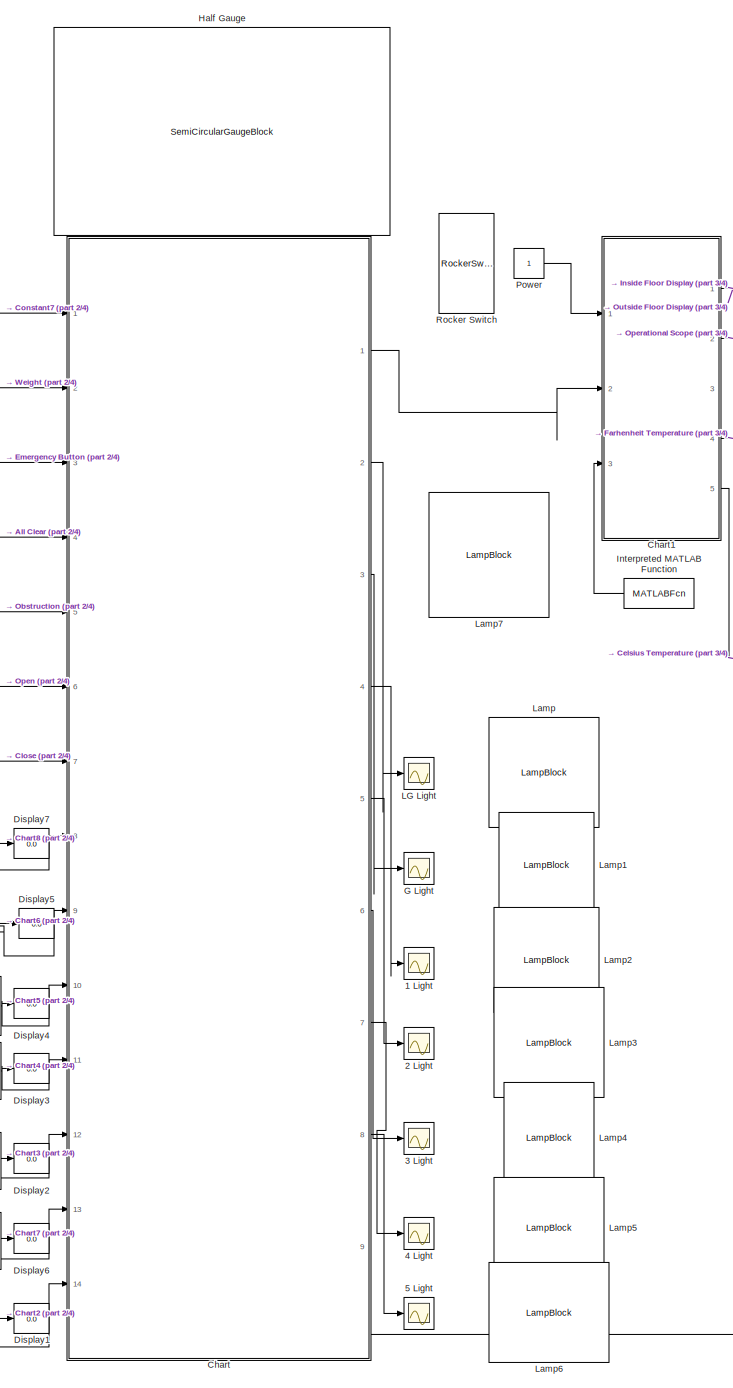
[diagram: root canvas - part 1/4, center side, full height]
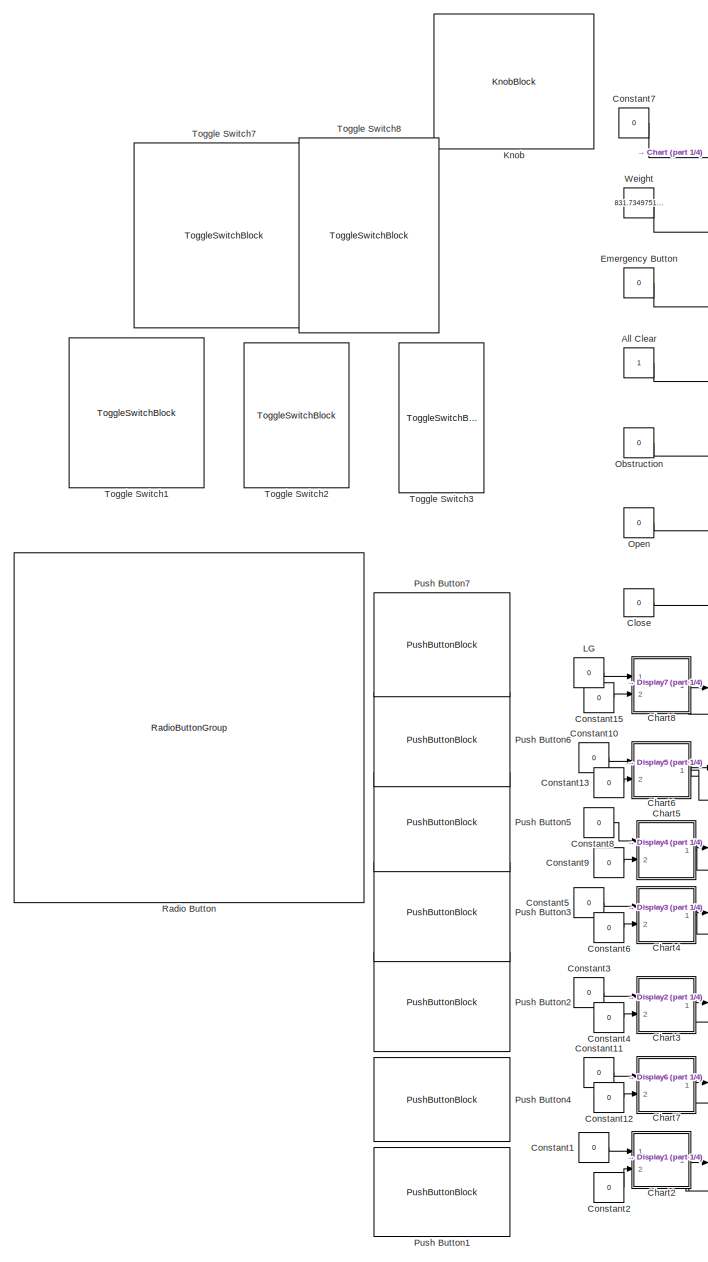
[diagram: root canvas - part 2/4, left side, full height]
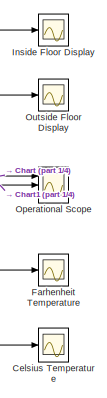
[diagram: root canvas - part 3/4, middle right region]
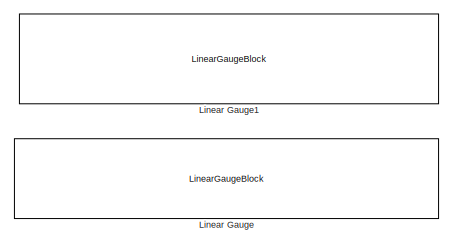
[diagram: root canvas - part 4/4, middle right region]
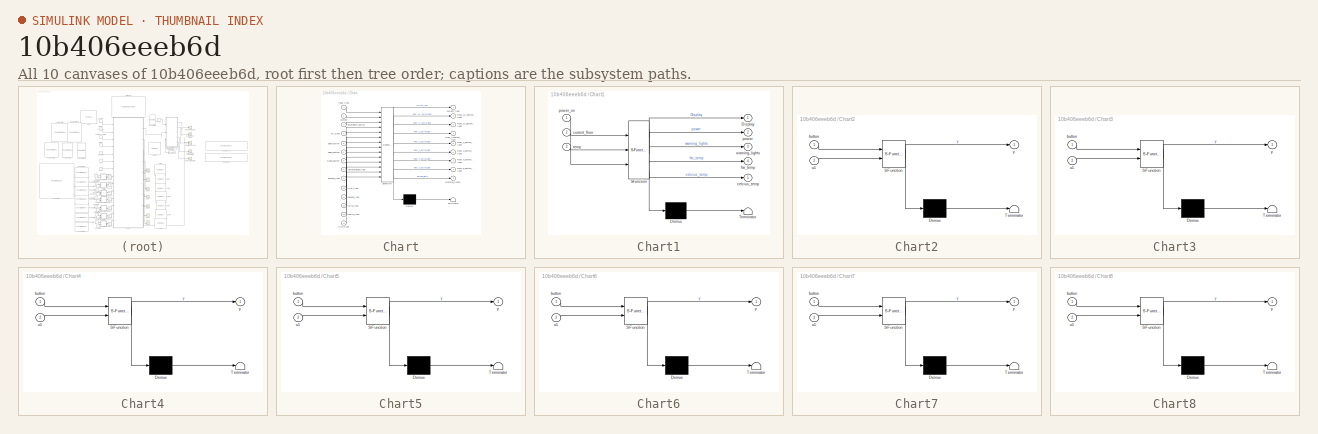
[diagram: thumbnail index - all 10 canvases of the model, root first then tree order]
MODEL slx_10b406eeeb6d
KIND model
CONFIG AbsTol = auto
CONFIG EnableMultiTasking = off
CONFIG FixedStep = auto
CONFIG MaxStep = auto
CONFIG MinStep = auto
CONFIG RelTol = 1e-3
CONFIG SampleTimeConstraint = Unconstrained
CONFIG Solver = VariableStepAuto
CONFIG SolverName = VariableStepAuto
CONFIG StartTime = 0.0
CONFIG StopTime = inf
BLOCK [Scope] 1 Light
  Floating = off
  NumInputPorts = 1
  Ports = [1]
  ScopeSpecificationString = Simulink.scopes.TimeScopeBlockCfg('CurrentConfiguration', extmgr.ConfigurationSet(extmgr.Configuration('Core','General UI',true),extmgr.Configuration('Core','Source UI',true),extmgr.Configuration('Sources','WiredSimulink',true,'DataLoggingVariableName','ScopeData3'),extmgr.Configuration('Visuals','Time Domain',true,'SerializedDisplays',{struct('MinYLimReal','-1.00000','MaxYLimReal','1.00000','YLab...<+1385ch>
BLOCK [Scope] 2 Light
  Floating = off
  NumInputPorts = 1
  Ports = [1]
  ScopeSpecificationString = Simulink.scopes.TimeScopeBlockCfg('CurrentConfiguration', extmgr.ConfigurationSet(extmgr.Configuration('Core','General UI',true),extmgr.Configuration('Core','Source UI',true),extmgr.Configuration('Sources','WiredSimulink',true,'DataLoggingVariableName','ScopeData4'),extmgr.Configuration('Visuals','Time Domain',true,'SerializedDisplays',{struct('MinYLimReal','-1.00000','MaxYLimReal','1.00000','YLab...<+1385ch>
BLOCK [Scope] 3 Light
  Floating = off
  NumInputPorts = 1
  Ports = [1]
  ScopeSpecificationString = Simulink.scopes.TimeScopeBlockCfg('CurrentConfiguration', extmgr.ConfigurationSet(extmgr.Configuration('Core','General UI',true),extmgr.Configuration('Core','Source UI',true),extmgr.Configuration('Sources','WiredSimulink',true,'DataLoggingVariableName','ScopeData5'),extmgr.Configuration('Visuals','Time Domain',true,'SerializedDisplays',{struct('MinYLimReal','-1.00000','MaxYLimReal','1.00000','YLab...<+1385ch>
BLOCK [Scope] 4 Light
  Floating = off
  NumInputPorts = 1
  Ports = [1]
  ScopeSpecificationString = Simulink.scopes.TimeScopeBlockCfg('CurrentConfiguration', extmgr.ConfigurationSet(extmgr.Configuration('Core','General UI',true),extmgr.Configuration('Core','Source UI',true),extmgr.Configuration('Sources','WiredSimulink',true,'DataLoggingVariableName','ScopeData6'),extmgr.Configuration('Visuals','Time Domain',true),extmgr.Configuration('Tools','Plot Navigation',true),extmgr.Configuration('Tools',...<+40ch>
BLOCK [Scope] 5 Light
  Floating = off
  NumInputPorts = 1
  Ports = [1]
  ScopeSpecificationString = Simulink.scopes.TimeScopeBlockCfg('CurrentConfiguration', extmgr.ConfigurationSet(extmgr.Configuration('Core','General UI',true),extmgr.Configuration('Core','Source UI',true),extmgr.Configuration('Sources','WiredSimulink',true,'DataLoggingVariableName','ScopeData7'),extmgr.Configuration('Visuals','Time Domain',true),extmgr.Configuration('Tools','Plot Navigation',true),extmgr.Configuration('Tools',...<+40ch>
BLOCK [Constant] All Clear
BLOCK [Scope] Celsius Temperature
  Floating = off
  NumInputPorts = 1
  Ports = [1]
  ScopeSpecificationString = Simulink.scopes.TimeScopeBlockCfg('CurrentConfiguration', extmgr.ConfigurationSet(extmgr.Configuration('Core','General UI',true),extmgr.Configuration('Core','Source UI',true),extmgr.Configuration('Sources','WiredSimulink',true,'DataLoggingVariableName','ScopeData4'),extmgr.Configuration('Visuals','Time Domain',true,'SerializedDisplays',{struct('MinYLimReal','-1.00000','MaxYLimReal','1.00000','YLab...<+1432ch>
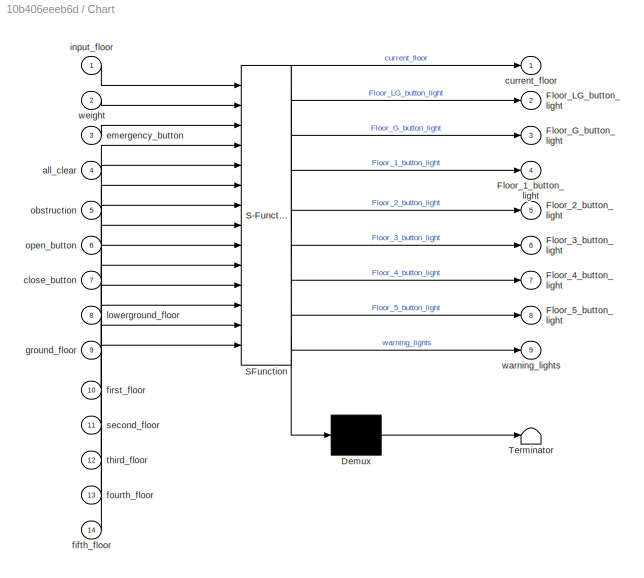
BLOCK [SubSystem] Chart
  ErrorFcn = Stateflow.Translate.translate
  PermitHierarchicalResolution = ExplicitOnly
  Ports = [14, 9]
  RequestExecContextInheritance = off
  SFBlockType = Chart
  TreatAsAtomicUnit = on
BLOCK [Demux] Chart/ Demux 
  Outputs = 1
  Ports = [1, 1]
BLOCK [S-Function] Chart/ SFunction 
  EnableBusSupport = on
  FunctionName = sf_sfun
  PortCounts = [14 10]
  Ports = [14, 10]
  SFcnIsStateOwnerBlock = off
  SFunctionDeploymentMode = off
  Tag = Stateflow S-Function 1
BLOCK [Terminator] Chart/ Terminator 
BLOCK [Outport] Chart/Floor_1_button_light
  IconDisplay = Port number
  Port = 4
BLOCK [Outport] Chart/Floor_2_button_light
  IconDisplay = Port number
  Port = 5
BLOCK [Outport] Chart/Floor_3_button_light
  IconDisplay = Port number
  Port = 6
BLOCK [Outport] Chart/Floor_4_button_light
  IconDisplay = Port number
  Port = 7
BLOCK [Outport] Chart/Floor_5_button_light
  IconDisplay = Port number
  Port = 8
BLOCK [Outport] Chart/Floor_G_button_light
  IconDisplay = Port number
  Port = 3
BLOCK [Outport] Chart/Floor_LG_button_light
  IconDisplay = Port number
  Port = 2
BLOCK [Inport] Chart/all_clear
  IconDisplay = Port number
  Port = 4
BLOCK [Inport] Chart/close_button
  IconDisplay = Port number
  Port = 7
BLOCK [Outport] Chart/current_floor
  IconDisplay = Port number
  VectorParamsAs1DForOutWhenUnconnected = off
BLOCK [Inport] Chart/emergency_button
  IconDisplay = Port number
  Port = 3
BLOCK [Inport] Chart/fifth_floor
  IconDisplay = Port number
  Port = 14
BLOCK [Inport] Chart/first_floor
  IconDisplay = Port number
  Port = 10
BLOCK [Inport] Chart/fourth_floor
  IconDisplay = Port number
  Port = 13
BLOCK [Inport] Chart/ground_floor
  IconDisplay = Port number
  Port = 9
BLOCK [Inport] Chart/input_floor
  IconDisplay = Port number
BLOCK [Inport] Chart/lowerground_floor
  IconDisplay = Port number
  Port = 8
BLOCK [Inport] Chart/obstruction
  IconDisplay = Port number
  Port = 5
BLOCK [Inport] Chart/open_button
  IconDisplay = Port number
  Port = 6
BLOCK [Inport] Chart/second_floor
  IconDisplay = Port number
  Port = 11
BLOCK [Inport] Chart/third_floor
  IconDisplay = Port number
  Port = 12
BLOCK [Outport] Chart/warning_lights
  IconDisplay = Port number
  Port = 9
BLOCK [Inport] Chart/weight
  IconDisplay = Port number
  Port = 2
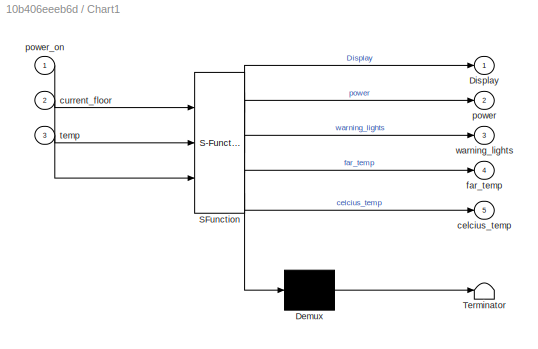
BLOCK [SubSystem] Chart1
  BlockKeywords = __PRM__SERIALIZED__DATA__:Stateflow Chart,Stateflow Diagram
  ErrorFcn = Stateflow.Translate.translate
  PermitHierarchicalResolution = ExplicitOnly
  Ports = [3, 5]
  RequestExecContextInheritance = off
  SFBlockType = Chart
  TreatAsAtomicUnit = on
BLOCK [Demux] Chart1/ Demux 
  Outputs = 1
  Ports = [1, 1]
BLOCK [S-Function] Chart1/ SFunction 
  EnableBusSupport = on
  FunctionName = sf_sfun
  PortCounts = [3 6]
  Ports = [3, 6]
  SFcnIsStateOwnerBlock = off
  SFunctionDeploymentMode = off
  Tag = Stateflow S-Function 3
BLOCK [Terminator] Chart1/ Terminator 
BLOCK [Outport] Chart1/Display
  IconDisplay = Port number
BLOCK [Outport] Chart1/celcius_temp
  IconDisplay = Port number
  Port = 5
BLOCK [Inport] Chart1/current_floor
  IconDisplay = Port number
  Port = 2
BLOCK [Outport] Chart1/far_temp
  IconDisplay = Port number
  Port = 4
BLOCK [Outport] Chart1/power
  IconDisplay = Port number
  Port = 2
BLOCK [Inport] Chart1/power_on
  IconDisplay = Port number
BLOCK [Inport] Chart1/temp
  IconDisplay = Port number
  Port = 3
BLOCK [Outport] Chart1/warning_lights
  IconDisplay = Port number
  Port = 3
BLOCK [SubSystem] Chart2
  BlockKeywords = __PRM__SERIALIZED__DATA__:Stateflow Chart,Stateflow Diagram
  ErrorFcn = Stateflow.Translate.translate
  PermitHierarchicalResolution = ExplicitOnly
  Ports = [2, 1]
  RequestExecContextInheritance = off
  SFBlockType = Chart
  TreatAsAtomicUnit = on
BLOCK [Demux] Chart2/ Demux 
  Outputs = 1
  Ports = [1, 1]
BLOCK [S-Function] Chart2/ SFunction 
  EnableBusSupport = on
  FunctionName = sf_sfun
  PortCounts = [2 2]
  Ports = [2, 2]
  SFcnIsStateOwnerBlock = off
  SFunctionDeploymentMode = off
  Tag = Stateflow S-Function 2
BLOCK [Terminator] Chart2/ Terminator 
BLOCK [Inport] Chart2/button
  IconDisplay = Port number
BLOCK [Inport] Chart2/u1
  IconDisplay = Port number
  Port = 2
BLOCK [Outport] Chart2/y
  IconDisplay = Port number
BLOCK [SubSystem] Chart3
  BlockKeywords = __PRM__SERIALIZED__DATA__:Stateflow Chart,Stateflow Diagram
  ErrorFcn = Stateflow.Translate.translate
  PermitHierarchicalResolution = ExplicitOnly
  Ports = [2, 1]
  RequestExecContextInheritance = off
  SFBlockType = Chart
  TreatAsAtomicUnit = on
BLOCK [Demux] Chart3/ Demux 
  Outputs = 1
  Ports = [1, 1]
BLOCK [S-Function] Chart3/ SFunction 
  EnableBusSupport = on
  FunctionName = sf_sfun
  PortCounts = [2 2]
  Ports = [2, 2]
  SFcnIsStateOwnerBlock = off
  SFunctionDeploymentMode = off
  Tag = Stateflow S-Function 4
BLOCK [Terminator] Chart3/ Terminator 
BLOCK [Inport] Chart3/button
  IconDisplay = Port number
BLOCK [Inport] Chart3/u1
  IconDisplay = Port number
  Port = 2
BLOCK [Outport] Chart3/y
  IconDisplay = Port number
BLOCK [SubSystem] Chart4
  BlockKeywords = __PRM__SERIALIZED__DATA__:Stateflow Chart,Stateflow Diagram
  ErrorFcn = Stateflow.Translate.translate
  PermitHierarchicalResolution = ExplicitOnly
  Ports = [2, 1]
  RequestExecContextInheritance = off
  SFBlockType = Chart
  TreatAsAtomicUnit = on
BLOCK [Demux] Chart4/ Demux 
  Outputs = 1
  Ports = [1, 1]
BLOCK [S-Function] Chart4/ SFunction 
  EnableBusSupport = on
  FunctionName = sf_sfun
  PortCounts = [2 2]
  Ports = [2, 2]
  SFcnIsStateOwnerBlock = off
  SFunctionDeploymentMode = off
  Tag = Stateflow S-Function 5
BLOCK [Terminator] Chart4/ Terminator 
BLOCK [Inport] Chart4/button
  IconDisplay = Port number
BLOCK [Inport] Chart4/u1
  IconDisplay = Port number
  Port = 2
BLOCK [Outport] Chart4/y
  IconDisplay = Port number
BLOCK [SubSystem] Chart5
  BlockKeywords = __PRM__SERIALIZED__DATA__:Stateflow Chart,Stateflow Diagram
  ErrorFcn = Stateflow.Translate.translate
  PermitHierarchicalResolution = ExplicitOnly
  Ports = [2, 1]
  RequestExecContextInheritance = off
  SFBlockType = Chart
  TreatAsAtomicUnit = on
BLOCK [Demux] Chart5/ Demux 
  Outputs = 1
  Ports = [1, 1]
BLOCK [S-Function] Chart5/ SFunction 
  EnableBusSupport = on
  FunctionName = sf_sfun
  PortCounts = [2 2]
  Ports = [2, 2]
  SFcnIsStateOwnerBlock = off
  SFunctionDeploymentMode = off
  Tag = Stateflow S-Function 6
BLOCK [Terminator] Chart5/ Terminator 
BLOCK [Inport] Chart5/button
  IconDisplay = Port number
BLOCK [Inport] Chart5/u1
  IconDisplay = Port number
  Port = 2
BLOCK [Outport] Chart5/y
  IconDisplay = Port number
BLOCK [SubSystem] Chart6
  BlockKeywords = __PRM__SERIALIZED__DATA__:Stateflow Chart,Stateflow Diagram
  ErrorFcn = Stateflow.Translate.translate
  PermitHierarchicalResolution = ExplicitOnly
  Ports = [2, 1]
  RequestExecContextInheritance = off
  SFBlockType = Chart
  TreatAsAtomicUnit = on
BLOCK [Demux] Chart6/ Demux 
  Outputs = 1
  Ports = [1, 1]
BLOCK [S-Function] Chart6/ SFunction 
  EnableBusSupport = on
  FunctionName = sf_sfun
  PortCounts = [2 2]
  Ports = [2, 2]
  SFcnIsStateOwnerBlock = off
  SFunctionDeploymentMode = off
  Tag = Stateflow S-Function 7
BLOCK [Terminator] Chart6/ Terminator 
BLOCK [Inport] Chart6/button
  IconDisplay = Port number
BLOCK [Inport] Chart6/u1
  IconDisplay = Port number
  Port = 2
BLOCK [Outport] Chart6/y
  IconDisplay = Port number
BLOCK [SubSystem] Chart7
  BlockKeywords = __PRM__SERIALIZED__DATA__:Stateflow Chart,Stateflow Diagram
  ErrorFcn = Stateflow.Translate.translate
  PermitHierarchicalResolution = ExplicitOnly
  Ports = [2, 1]
  RequestExecContextInheritance = off
  SFBlockType = Chart
  TreatAsAtomicUnit = on
BLOCK [Demux] Chart7/ Demux 
  Outputs = 1
  Ports = [1, 1]
BLOCK [S-Function] Chart7/ SFunction 
  EnableBusSupport = on
  FunctionName = sf_sfun
  PortCounts = [2 2]
  Ports = [2, 2]
  SFcnIsStateOwnerBlock = off
  SFunctionDeploymentMode = off
  Tag = Stateflow S-Function 8
BLOCK [Terminator] Chart7/ Terminator 
BLOCK [Inport] Chart7/button
  IconDisplay = Port number
BLOCK [Inport] Chart7/u1
  IconDisplay = Port number
  Port = 2
BLOCK [Outport] Chart7/y
  IconDisplay = Port number
BLOCK [SubSystem] Chart8
  BlockKeywords = __PRM__SERIALIZED__DATA__:Stateflow Chart,Stateflow Diagram
  ErrorFcn = Stateflow.Translate.translate
  PermitHierarchicalResolution = ExplicitOnly
  Ports = [2, 1]
  RequestExecContextInheritance = off
  SFBlockType = Chart
  TreatAsAtomicUnit = on
BLOCK [Demux] Chart8/ Demux 
  Outputs = 1
  Ports = [1, 1]
BLOCK [S-Function] Chart8/ SFunction 
  EnableBusSupport = on
  FunctionName = sf_sfun
  PortCounts = [2 2]
  Ports = [2, 2]
  SFcnIsStateOwnerBlock = off
  SFunctionDeploymentMode = off
  Tag = Stateflow S-Function 9
BLOCK [Terminator] Chart8/ Terminator 
BLOCK [Inport] Chart8/button
  IconDisplay = Port number
BLOCK [Inport] Chart8/u1
  IconDisplay = Port number
  Port = 2
BLOCK [Outport] Chart8/y
  IconDisplay = Port number
BLOCK [Constant] Close
  Value = 0
BLOCK [Constant] Constant1
  Value = 0
BLOCK [Constant] Constant10
  Value = 0
BLOCK [Constant] Constant11
  Value = 0
BLOCK [Constant] Constant12
  Value = 0
BLOCK [Constant] Constant13
  Value = 0
BLOCK [Constant] Constant15
  Value = 0
BLOCK [Constant] Constant2
  Value = 0
BLOCK [Constant] Constant3
  Value = 0
BLOCK [Constant] Constant4
  Value = 0
BLOCK [Constant] Constant5
  Value = 0
BLOCK [Constant] Constant6
  Value = 0
BLOCK [Constant] Constant7
  Value = 0
BLOCK [Constant] Constant8
  Value = 0
BLOCK [Constant] Constant9
  Value = 0
BLOCK [Display] Display1
  Decimation = 1
  Ports = [1]
BLOCK [Display] Display2
  Decimation = 1
  Ports = [1]
BLOCK [Display] Display3
  Decimation = 1
  Ports = [1]
BLOCK [Display] Display4
  Decimation = 1
  Ports = [1]
BLOCK [Display] Display5
  Decimation = 1
  Ports = [1]
BLOCK [Display] Display6
  Decimation = 1
  Ports = [1]
BLOCK [Display] Display7
  Decimation = 1
  Ports = [1]
BLOCK [Constant] Emergency Button
  Value = 0
BLOCK [Scope] Farhenheit Temperature
  Floating = off
  NumInputPorts = 1
  Ports = [1]
  ScopeSpecificationString = Simulink.scopes.TimeScopeBlockCfg('CurrentConfiguration', extmgr.ConfigurationSet(extmgr.Configuration('Core','General UI',true),extmgr.Configuration('Core','Source UI',true),extmgr.Configuration('Sources','WiredSimulink',true,'DataLoggingVariableName','ScopeData3'),extmgr.Configuration('Visuals','Time Domain',true,'SerializedDisplays',{struct('MinYLimReal','-10.32306','MaxYLimReal','92.90751','YL...<+1380ch>
BLOCK [Scope] G Light
  Floating = off
  NumInputPorts = 1
  Ports = [1]
  ScopeSpecificationString = Simulink.scopes.TimeScopeBlockCfg('CurrentConfiguration', extmgr.ConfigurationSet(extmgr.Configuration('Core','General UI',true),extmgr.Configuration('Core','Source UI',true),extmgr.Configuration('Sources','WiredSimulink',true,'DataLoggingVariableName','ScopeData2'),extmgr.Configuration('Visuals','Time Domain',true,'SerializedDisplays',{struct('MinYLimReal','-0.125','MaxYLimReal','1.125','YLabelRe...<+1402ch>
BLOCK [SemiCircularGaugeBlock] Half Gauge
  ScaleMax = 5
  ScaleMin = -1
  TickInterval = 1
BLOCK [Scope] Inside Floor Display 
  Floating = off
  NumInputPorts = 1
  Ports = [1]
  ScopeSpecificationString = Simulink.scopes.TimeScopeBlockCfg('CurrentConfiguration', extmgr.ConfigurationSet(extmgr.Configuration('Core','General UI',true),extmgr.Configuration('Core','Source UI',true),extmgr.Configuration('Sources','WiredSimulink',true,'DataLoggingVariableName','ScopeData1'),extmgr.Configuration('Visuals','Time Domain',true),extmgr.Configuration('Tools','Plot Navigation',true),extmgr.Configuration('Tools',...<+40ch>
BLOCK [MATLABFcn] Interpreted MATLAB Function
  MATLABFcn = (webread("http://api.openweathermap.org/data/2.5/forecast?id=2652221&APPID=0d4add3479401fba2717516fc46e760f").list{1, 1}.main.temp) - 273;
  OutputDimensions = 1
  Ports = [1, 1]
BLOCK [KnobBlock] Knob
  ScaleMax = 2000
BLOCK [Constant] LG
  Value = 0
BLOCK [Scope] LG Light
  Floating = off
  NumInputPorts = 1
  Ports = [1]
  ScopeSpecificationString = Simulink.scopes.TimeScopeBlockCfg('CurrentConfiguration', extmgr.ConfigurationSet(extmgr.Configuration('Core','General UI',true),extmgr.Configuration('Core','Source UI',true),extmgr.Configuration('Sources','WiredSimulink',true,'DataLoggingVariableName','ScopeData1'),extmgr.Configuration('Visuals','Time Domain',true,'SerializedDisplays',{struct('MinYLimReal','-1.00000','MaxYLimReal','1.00000','YLab...<+1386ch>
BLOCK [LampBlock] Lamp
BLOCK [LampBlock] Lamp1
BLOCK [LampBlock] Lamp2
BLOCK [LampBlock] Lamp3
BLOCK [LampBlock] Lamp4
BLOCK [LampBlock] Lamp5
BLOCK [LampBlock] Lamp6
BLOCK [LampBlock] Lamp7
BLOCK [LinearGaugeBlock] Linear Gauge
  ScaleMax = 50
  ScaleMin = -10
BLOCK [LinearGaugeBlock] Linear Gauge1
  ScaleMax = 122
  ScaleMin = 14
BLOCK [Constant] Obstruction
  Value = 0
BLOCK [Constant] Open
  Value = 0
BLOCK [Scope] Operational Scope 
  Floating = off
  NumInputPorts = 3
  Ports = [3]
  ScopeSpecificationString = Simulink.scopes.TimeScopeBlockCfg('CurrentConfiguration', extmgr.ConfigurationSet(extmgr.Configuration('Core','General UI',true),extmgr.Configuration('Core','Source UI',true),extmgr.Configuration('Sources','WiredSimulink',true,'DataLoggingVariableName','ScopeData2'),extmgr.Configuration('Visuals','Time Domain',true,'SerializedDisplays',{struct('MinYLimReal','-0.125','MaxYLimReal','1.125','YLabelRe...<+1424ch>
BLOCK [Scope] Outside Floor Display 
  Floating = off
  NumInputPorts = 1
  Ports = [1]
  ScopeSpecificationString = Simulink.scopes.TimeScopeBlockCfg('CurrentConfiguration', extmgr.ConfigurationSet(extmgr.Configuration('Core','General UI',true),extmgr.Configuration('Core','Source UI',true),extmgr.Configuration('Sources','WiredSimulink',true),extmgr.Configuration('Visuals','Time Domain',true),extmgr.Configuration('Tools','Plot Navigation',true),extmgr.Configuration('Tools','Measurements',true)),'Version','2019b'...<+1ch>
BLOCK [Constant] Power
BLOCK [PushButtonBlock] Push Button1
  ButtonText = 5
BLOCK [PushButtonBlock] Push Button2
  ButtonText = 3
BLOCK [PushButtonBlock] Push Button3
  ButtonText = 2
BLOCK [PushButtonBlock] Push Button4
  ButtonText = 4
BLOCK [PushButtonBlock] Push Button5
  ButtonText = 1
BLOCK [PushButtonBlock] Push Button6
  ButtonText = G
BLOCK [PushButtonBlock] Push Button7
  ButtonText = LG
BLOCK [RadioButtonGroup] Radio Button
  ButtonGroupName = Start Floor
  SelectedLabel = Ground
BLOCK [RockerSwitchBlock] Rocker Switch
BLOCK [ToggleSwitchBlock] Toggle Switch1
BLOCK [ToggleSwitchBlock] Toggle Switch2
BLOCK [ToggleSwitchBlock] Toggle Switch3
BLOCK [ToggleSwitchBlock] Toggle Switch7
BLOCK [ToggleSwitchBlock] Toggle Switch8
BLOCK [Constant] Weight 
  Value = 831.7349751790365
LINE All Clear:1 -> Chart:4
NET Chart1:1 -> Inside Floor Display :1, Outside Floor Display :1
LINE Chart1:2 -> Operational Scope :2
LINE Chart1:4 -> Farhenheit Temperature:1
LINE Chart1:5 -> Celsius Temperature:1
NET Chart2:1 -> Chart:14, Display1:1
NET Chart3:1 -> Chart:12, Display2:1
NET Chart4:1 -> Chart:11, Display3:1
NET Chart5:1 -> Chart:10, Display4:1
NET Chart6:1 -> Chart:9, Display5:1
NET Chart7:1 -> Chart:13, Display6:1
NET Chart8:1 -> Chart:8, Display7:1
LINE Chart:1 -> Chart1:2
LINE Chart:2 -> LG Light:1
LINE Chart:3 -> G Light:1
LINE Chart:4 -> 1 Light:1
LINE Chart:5 -> 2 Light:1
LINE Chart:6 -> 3 Light:1
LINE Chart:7 -> 4 Light:1
LINE Chart:8 -> 5 Light:1
LINE Chart:9 -> Operational Scope :1
LINE Close:1 -> Chart:7
LINE Constant10:1 -> Chart6:1
LINE Constant11:1 -> Chart7:1
LINE Constant12:1 -> Chart7:2
LINE Constant13:1 -> Chart6:2
LINE Constant15:1 -> Chart8:2
LINE Constant1:1 -> Chart2:1
LINE Constant2:1 -> Chart2:2
LINE Constant3:1 -> Chart3:1
LINE Constant4:1 -> Chart3:2
LINE Constant5:1 -> Chart4:1
LINE Constant6:1 -> Chart4:2
LINE Constant7:1 -> Chart:1
LINE Constant8:1 -> Chart5:1
LINE Constant9:1 -> Chart5:2
LINE Emergency Button:1 -> Chart:3
LINE Interpreted MATLAB Function:1 -> Chart1:3
LINE LG:1 -> Chart8:1
LINE Obstruction:1 -> Chart:5
LINE Open:1 -> Chart:6
LINE Power:1 -> Chart1:1
LINE Weight :1 -> Chart:2
note: NET lines group one-source signal fan-out (src -> all destinations, sorted); 1:1 wires keep LINE
CHART Test Sequence states=1 transitions=1
  STATE_LABEL 'Run\n\n%% Initialize data outputs.\ninput_floor = 0;\nweight = 100;\nemergency_button = 0;\nall_clear = 0;\nlowerground_floor = 0;\nground_floor = 0;\nfirst_floor = 1;\nsecond_floor = 0;\nthird_floor = ;\nfourth_floor = 0;\nfifth_floor = 0;'
CHART Chart states=17 transitions=53
  STATE_LABEL 'Update_F2\nFloors(4) = 1;'
  STATE_LABEL 'Update_F4\nFloors(6) = 1;'
  STATE_LABEL 'Update_G\nFloors(2) = 1;'
  STATE_LABEL 'Update_F1\nFloors(3) = 1;'
  STATE_LABEL 'Update_F3\nFloors(5) = 1;'
  STATE_LABEL 'Update_F5\nFloors(7) = 1;'
  STATE_LABEL 'Update_LG\nFloors(1) = 1;'
  STATE_LABEL 'Moving\nentry:\nmusic=1;\ndisp("music plays")\nduring:\nif emergency_button == 1 || weight >= 1500\n    emergency = 1;\nend\n'
  STATE_LABEL 'Up\nentry:\nif Floors(1)==1\n    Floor_LG_button_light=1;\nend\nif Floors(2)==1\n    Floor_G_button_light=1;\nend\nif Floors(3)==1\n    Floor_1_button_light=1;\nend\nif Floors(4)==1\n    Floor_2_button_light=1;\nend\nif Floors(5)==1\n    Floor_3_button_light=1;\nend\nif Floors(6)==1\n    Floor_4_button_light=1;\nend\nif Floors(7)==1\n    Floor_5_button_light=1;\nend\nmove=0;\ni=1;\nfor(j=(current_floor+2):1:7)\n    if (Flo...<+402ch>'
  STATE_LABEL 'Down\nentry:\nmove=0;k=7;\nfor(j=(current_floor+2):1:1)\n    if (Floors(j)==1)\n        up=0;\n        break\n    else\n        up=1;\n    end\nend\nduring:\nfor(m=5:-1:0)\n    while current_floor==m\n        for(k=current_floor+2:-1:1)\n            if(Floors(k)==1)\n                move=1;\n                break\n            end\n        end\n        break\n    end\nend'
  STATE_LABEL 'Transport\nentry:\nif up==1\n    current_floor=i-2;\nelse\n    current_floor=k-2;\nend\nif current_floor==-1\n    Floor_LG_button_light=0;\nelseif current_floor==0\n    Floor_G_button_light=0;\nelseif current_floor==1\n    Floor_1_button_light=0;\nelseif current_floor==2\n    Floor_2_button_light=0;\nelseif current_floor==3\n    Floor_3_button_light=0;\nelseif current_floor==4\n    Floor_4_button_light=0;\nelseif cu...<+104ch>'
  STATE_LABEL 'Open_door\nentry:\ndoor_state=1;\nmusic = 0;\nsound = 1;\nswitch current_floor\n    case (-1)\n        disp("Announcer: lower ground floor")\n        disp("opening lower ground doors")\n    case 0\n        disp("Announcer: ground floor")\n        disp("opening ground floor doors")\n    case 1\n        disp("Announcer: floor 1")\n        disp("opening floor 1 doors")\n    case 2\n        disp("Announcer: floor 2")...<+541ch>'  <repeated x3 — deduplicated; at blocks: Chart>
  STATE_LABEL 'Idle1\nentry:\npause(3);\ndoor_state = 1;\nmove=0;'
  STATE_LABEL 'Close_Door\n% Closes door\nduring:\npause(3);\ndoor_state = 0;\nsound = 1;\nif door_state == 0\n    disp("Announcer: doors closing")\n    switch current_floor\n        case (-1)\n            disp("system.out closing lower ground doors")\n        case 0\n            disp("system.out closing ground floor doors")\n        case 1\n            disp("system.out closing floor 1 doors")\n        case 2\n            disp(...<+292ch>'  <repeated x3 — deduplicated; at blocks: Chart>
  STATE_LABEL '[move == 0]'
  STATE_LABEL '[open_button == 1 || obstruction == 1]'
  STATE_LABEL '[(obstruction == 0 && open_button == 0) || close_button == 1]'
  STATE_LABEL '[up==0]'
  STATE_LABEL '[up==1]'
  STATE_LABEL '[move==1]'
  STATE_LABEL '[move==0&&up==0&&door_state==0]'
  STATE_LABEL '[move==1]'
  STATE_LABEL '[move==0&&up==1&&door_state==0]'
  STATE_LABEL 'Up\nentry:\nif Floors(1)==1\n    Floor_LG_button_light=1;\nend\nif Floors(2)==1\n    Floor_G_button_light=1;\nend\nif Floors(3)==1\n    Floor_1_button_light=1;\nend\nif Floors(4)==1\n    Floor_2_button_light=1;\nend\nif Floors(5)==1\n    Floor_3_button_light=1;\nend\nif Floors(6)==1\n    Floor_4_button_light=1;\nend\nif Floors(7)==1\n    Floor_5_button_light=1;\nend\nmove=0;\ni=1;\nfor(j=(current_floor+2):1:7)\n    if (Flo...<+402ch>'
  STATE_LABEL 'Down\nentry:\nmove=0;k=7;\nfor(j=(current_floor+2):1:1)\n    if (Floors(j)==1)\n        up=0;\n        break\n    else\n        up=1;\n    end\nend\nduring:\nfor(m=5:-1:0)\n    while current_floor==m\n        for(k=current_floor+2:-1:1)\n            if(Floors(k)==1)\n                move=1;\n                break\n            end\n        end\n        break\n    end\nend'
  STATE_LABEL 'Transport\nentry:\nif up==1\n    current_floor=i-2;\nelse\n    current_floor=k-2;\nend\nif current_floor==-1\n    Floor_LG_button_light=0;\nelseif current_floor==0\n    Floor_G_button_light=0;\nelseif current_floor==1\n    Floor_1_button_light=0;\nelseif current_floor==2\n    Floor_2_button_light=0;\nelseif current_floor==3\n    Floor_3_button_light=0;\nelseif current_floor==4\n    Floor_4_button_light=0;\nelseif cu...<+104ch>'
  STATE_LABEL 'Idle1\nentry:\npause(3);\ndoor_state = 1;\nmove=0;'
  STATE_LABEL '[move == 0]'
  STATE_LABEL '[open_button == 1 || obstruction == 1]'
  STATE_LABEL '[(obstruction == 0 && open_button == 0) || close_button == 1]'
  STATE_LABEL 'Idle1\nentry:\npause(3);\ndoor_state = 1;\nmove=0;'
  STATE_LABEL "Input\nentry:\nFloors=[ lowerground_floor ground_floor first_floor second_floor third_floor fourth_floor fifth_floor ]'\ncurrent_floor=input_floor;\nemergency = 0;\nOriginal=Floors\nduring:\nFloors=[ lowerground_floor ground_floor first_floor second_floor third_floor fourth_floor fifth_floor ]'"
  STATE_LABEL "Idle\nentry:\nmusic=0;\ndoor_state=1;\nexit:\ndoor_state=0;\nduring:\nif [Floors(1)==0&&Floors(2)==0&&Floors(3)==0&&Floors(4)==0&&Floors(5)==0&&Floors(6)==0&&Floors(7)==0]\n    Floors=[ lowerground_floor ground_floor first_floor second_floor third_floor fourth_floor fifth_floor ]'\nend\nexit:\nif Floors==Original\n    Floors(1)=0;\n    Floors(2)=0;\n    Floors(3)=0;\n    Floors(4)=0;\n    Floors(5)=0;\n    Floors(...<+26ch>"
  STATE_LABEL 'STOP\nentry:\nwarning_lights = 1;\nduring:\nif all_clear == 1 && weight < 1500 && emergency_button == 0\n    emergency = 0;\nend\nexit:\nwarning_lights = 0;'
CHART Chart2 states=3 transitions=4
  STATE_LABEL 'In1\na = u1'
  STATE_LABEL 'In'
  STATE_LABEL 'Out\nentry:\ny = a + 1;\nexit:\na = y\n'
CHART Chart1 states=3 transitions=5
  STATE_LABEL 'On\nentry:\npower = 1\nduring:\ncelcius_temp = temp;\nfar_temp = (celcius_temp .* (9/5) + 32);\nswitch current_floor\n    case -1\n        Display = -1;\n    case 0\n        Display = 0;\n    case 1\n        Display = 1;\n    case 2\n        Display = 2;\n    case 3\n        Display = 3;\n    case 4\n        Display = 4;\n    case 5\n        Display = 5;\n    otherwise\n        Display = 00;\n        emergency = 1;\nend ...<+12ch>'
  STATE_LABEL 'Off\nentry:\npower = 0;\nexit:\nemergency = 0;'
  STATE_LABEL 'Emergency\nentry:\nwarning_lights = 1;\nexit:\nwarning_lights = 0;'
CHART Chart3 states=3 transitions=4
  STATE_LABEL 'In1\na = u1'
  STATE_LABEL 'In'
  STATE_LABEL 'Out\nentry:\ny = a + 1;\nexit:\na = y\n'
CHART Chart4 states=3 transitions=4
  STATE_LABEL 'In1\na = u1'
  STATE_LABEL 'In'
  STATE_LABEL 'Out\nentry:\ny = a + 1;\nexit:\na = y\n'
CHART Chart5 states=3 transitions=4
  STATE_LABEL 'In1\na = u1'
  STATE_LABEL 'In'
  STATE_LABEL 'Out\nentry:\ny = a + 1;\nexit:\na = y\n'
CHART Chart6 states=3 transitions=4
  STATE_LABEL 'In1\na = u1'
  STATE_LABEL 'In'
  STATE_LABEL 'Out\nentry:\ny = a + 1;\nexit:\na = y\n'
CHART Chart7 states=3 transitions=4
  STATE_LABEL 'In1\na = u1'
  STATE_LABEL 'In'
  STATE_LABEL 'Out\nentry:\ny = a + 1;\nexit:\na = y\n'
CHART Chart8 states=3 transitions=4
  STATE_LABEL 'In1\na = u1'
  STATE_LABEL 'In'
  STATE_LABEL 'Out\nentry:\ny = a + 1;\nexit:\na = y\n'
